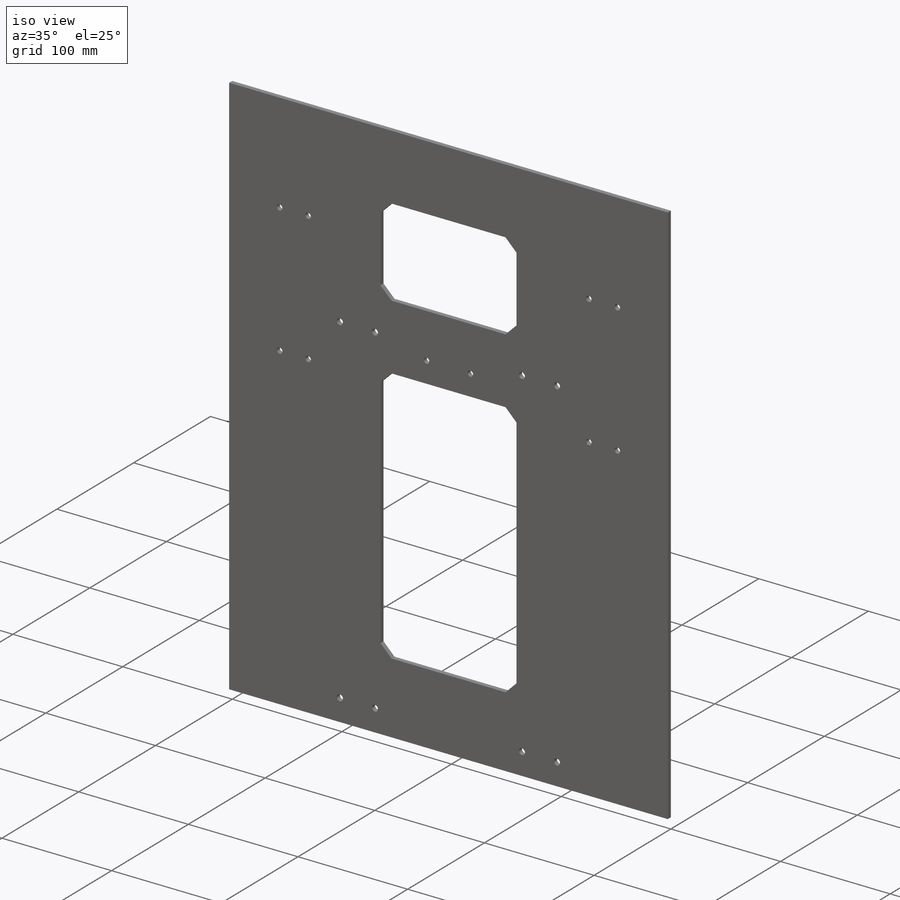
[diagram: iso view]
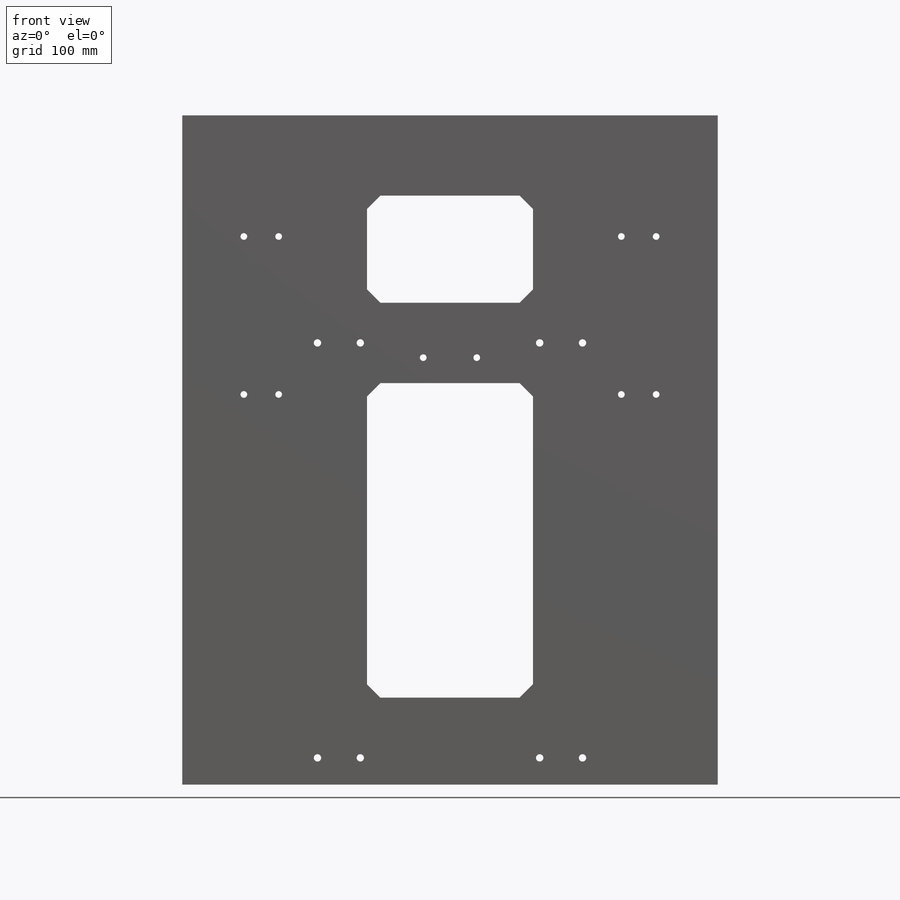
[diagram: front view]
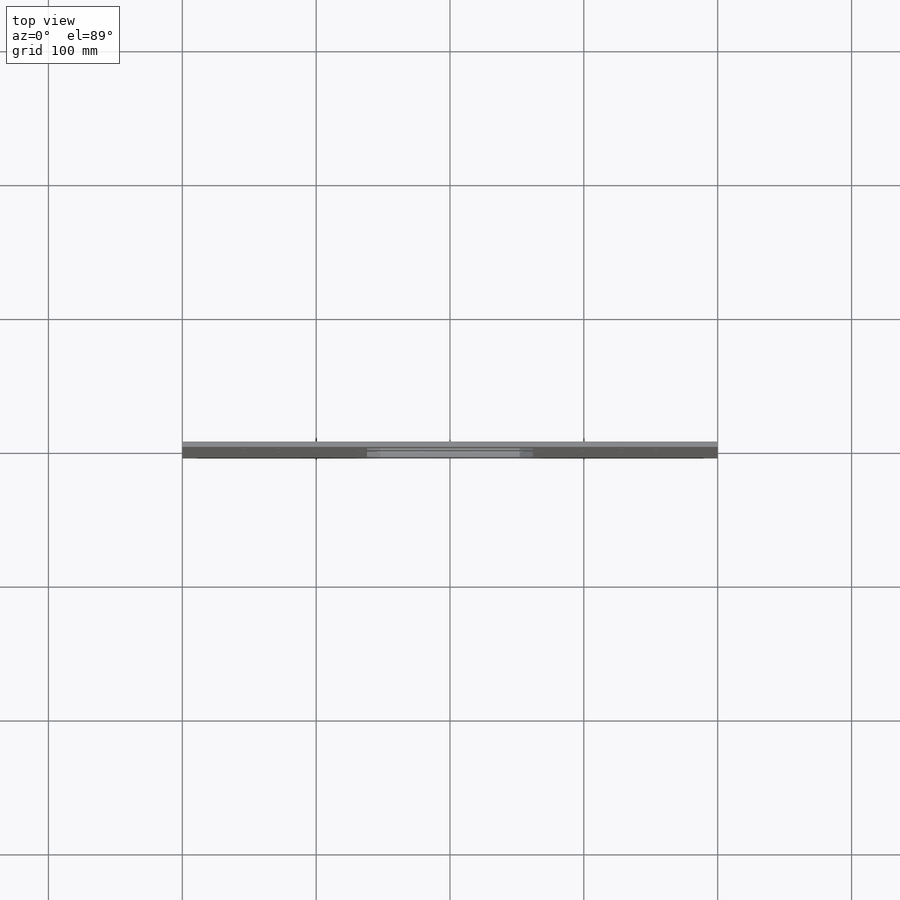
[diagram: top view]
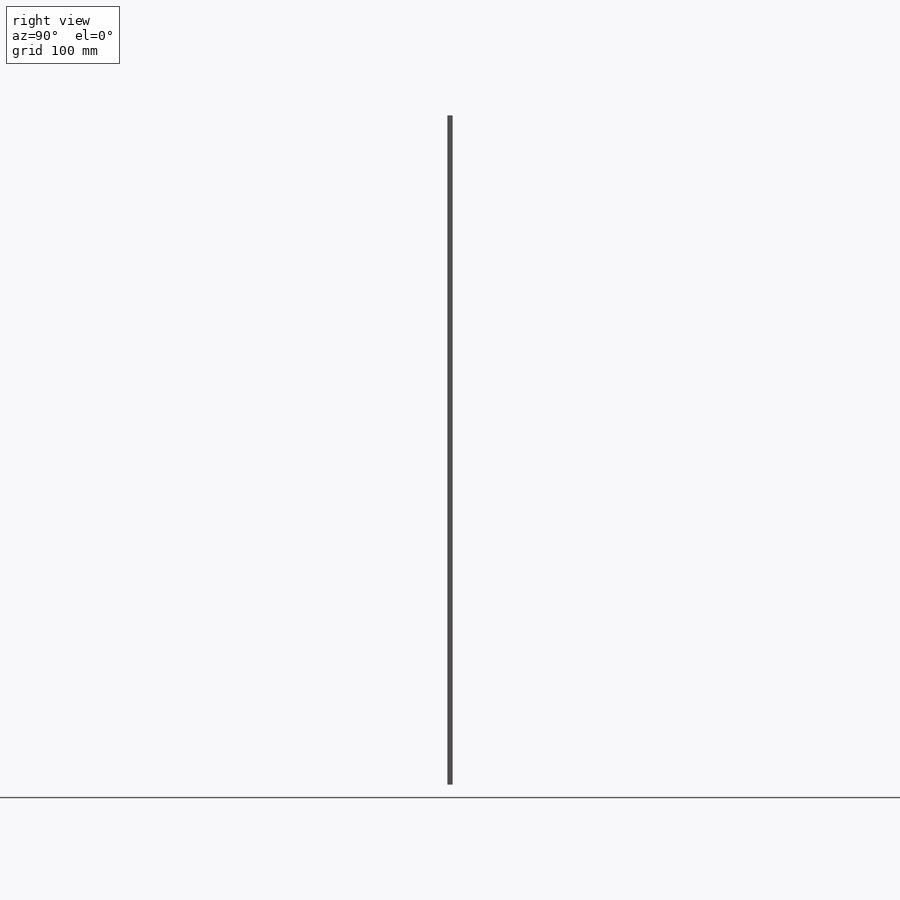
[diagram: right view]
SOLIDWORKS PART (.sldprt)
format: sldprt  version: not decoded by parser v0  size: 751,616 bytes
history: native  units: mm
features: sketch x8, cut_extrude x7, plane x3, material x1, extrude x1, chamfer x1 (+9 scaffold rows collapsed)
feature tree (30):
  scaffold x9  (default folders/planes/origin — collapsed)
  material  "1023 Carbon Steel Sheet (SS)"
  plane  "Plan de face"
  plane  "Plan de dessus"
  plane  "Plan de droite"
  sketch  "Sketch1"  dims[D1=400.0mm D2=500.0mm]
  extrude  "Boss-Extrude1"  Depth=4mm
  sketch  "Sketch2"  dims[c1.D1=138.0mm c1.D2=124.0mm c1.D3=65.0mm c1.D4=200.0mm c2.D1=124.0mm]
  cut_extrude  "Cut-Extrude1"  [1 undecoded]
  sketch  "Sketch4"  dims[D1=5.5mm D2=170.0mm D3=101.0mm]
  cut_extrude  "Cut-Extrude3"  Depth=10mm
  sketch  "Sketch5"  dims[D1=5.0mm D2=181.0mm D3=180.0mm]
  cut_extrude  "Cut-Extrude4"  [1 undecoded]
  sketch  "Sketch6"  dims[c1.D1=5.0mm c1.D2=5.0mm c1.D3=5.0mm c1.D4=5.0mm c1.D5=90.5mm c1.D6=118.0mm c1.D7=39.0mm c1.D8=41.67mm c1.D9=39.0mm c2.D7=46.0mm c2.D8=26.0mm c2.D9=104.0mm]
  cut_extrude  "Cut-Extrude5"  [1 undecoded]
  sketch  "Sketch7"  dims[D2=5.5mm D1=101.0mm D3=20.0mm D4=16.0mm]
  cut_extrude  "Cut-Extrude6"  Depth=4mm
  sketch  "Sketch8"  dims[D1=117.5mm D2=117.5mm]
  cut_extrude  "Cut-Extrude8"  Depth=4mm
  sketch  "Sketch9"  dims[D1=100.0mm D2=124.0mm D3=80.0mm D4=200.0mm]
  cut_extrude  "Cut-Extrude9"  Depth=4mm
  chamfer  "Chamfer1"  Distance=10mm Angle=45deg
decode coverage: 14 of 17 modeling features carry decoded parameters
note: 3 parameter values undecoded
summary: no parameter record found for 3 features
note: suppression state not decoded; provenance and decode notes live in map.json
